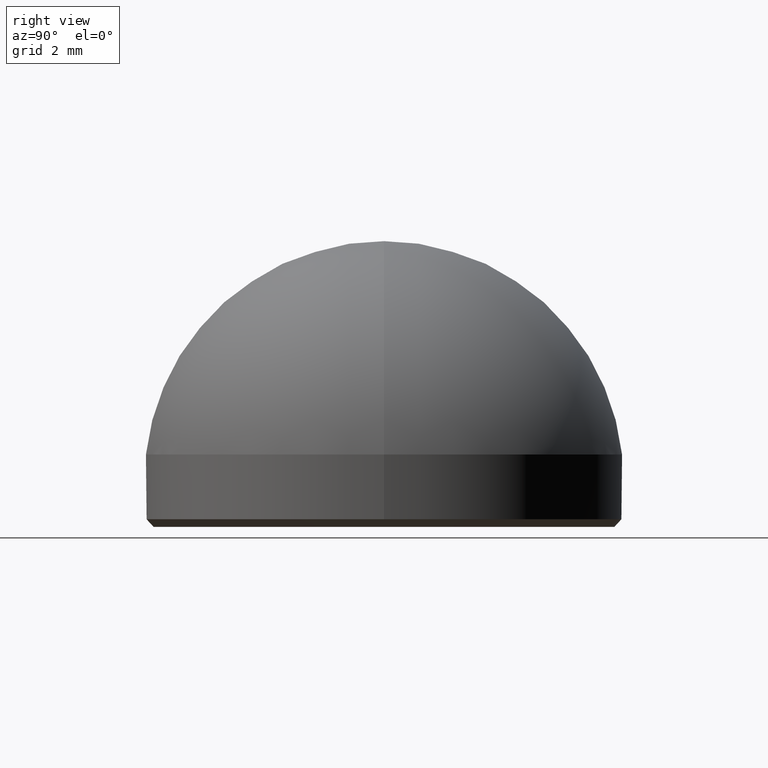
[diagram: clean part render]
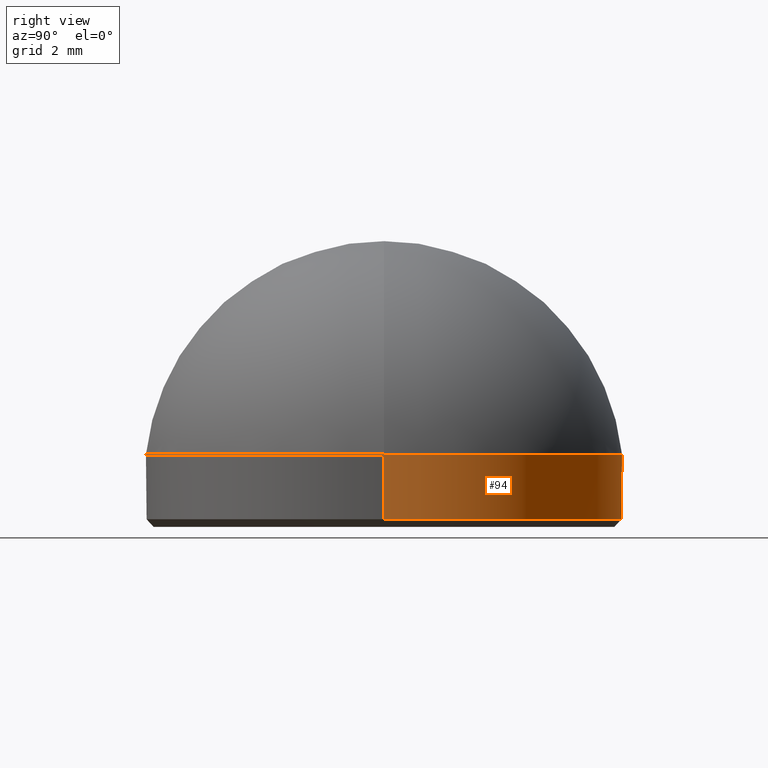
[diagram: same view with one face highlighted and labeled with its STEP entity id]
A machine part, right view. The second image highlights one B-rep face of the part: STEP entity #94.
In plain terms, the highlighted cylindrical surface (partial cylindrical patch) has radius 6.25 mm, axis along (-0, -0, -1).
Its self-contained STEP definition (entity closure, byte-faithful):
#1 = VERTEX_POINT ( 'NONE', #51 ) ;
#11 = DIRECTION ( 'NONE',  ( -0.000000000000000000, -0.000000000000000000, -1.000000000000000000 ) ) ;
#12 = VERTEX_POINT ( 'NONE', #181 ) ;
#13 = EDGE_CURVE ( 'NONE', #1, #200, #53, .T. ) ;
#20 = AXIS2_PLACEMENT_3D ( 'NONE', #123, #187, #43 ) ;
#23 = CARTESIAN_POINT ( 'NONE',  ( -6.250000000000000000, 0.000000000000000000, 0.2000000000000083378 ) ) ;
#31 = LINE ( 'NONE', #60, #85 ) ;
#36 = CARTESIAN_POINT ( 'NONE',  ( 0.000000000000000000, 0.000000000000000000, 0.2000000000000083378 ) ) ;
#41 = DIRECTION ( 'NONE',  ( 1.000000000000000000, 0.000000000000000000, 0.000000000000000000 ) ) ;
#43 = DIRECTION ( 'NONE',  ( 1.000000000000000000, 0.000000000000000000, 0.000000000000000000 ) ) ;
#50 = ORIENTED_EDGE ( 'NONE', *, *, #214, .T. ) ;
#51 = CARTESIAN_POINT ( 'NONE',  ( 6.250000000000000000, 7.654042494670955634E-16, 0.2000000000000083378 ) ) ;
#53 = CIRCLE ( 'NONE', #204, 6.250000000000000000 ) ;
#55 = LINE ( 'NONE', #164, #152 ) ;
#56 = EDGE_CURVE ( 'NONE', #64, #200, #31, .T. ) ;
#60 = CARTESIAN_POINT ( 'NONE',  ( -6.250000000000000000, 0.000000000000000000, 1.899999999999999911 ) ) ;
#61 = DIRECTION ( 'NONE',  ( -0.000000000000000000, -0.000000000000000000, -1.000000000000000000 ) ) ;
#64 = VERTEX_POINT ( 'NONE', #93 ) ;
#75 = DIRECTION ( 'NONE',  ( -1.000000000000000000, 0.000000000000000000, 0.000000000000000000 ) ) ;
#77 = FACE_OUTER_BOUND ( 'NONE', #130, .T. ) ;
#79 = ORIENTED_EDGE ( 'NONE', *, *, #168, .F. ) ;
#83 = DIRECTION ( 'NONE',  ( -0.000000000000000000, -0.000000000000000000, -1.000000000000000000 ) ) ;
#85 = VECTOR ( 'NONE', #11, 1000.000000000000000 ) ;
#92 = DIRECTION ( 'NONE',  ( -0.000000000000000000, -0.000000000000000000, 1.000000000000000000 ) ) ;
#93 = CARTESIAN_POINT ( 'NONE',  ( -6.250000000000000000, 0.000000000000000000, 1.899999999999999911 ) ) ;
#94 = ADVANCED_FACE ( 'NONE', ( #77 ), #169, .T. ) ;
#123 = CARTESIAN_POINT ( 'NONE',  ( 0.000000000000000000, 0.000000000000000000, 1.899999999999999911 ) ) ;
#124 = CIRCLE ( 'NONE', #20, 6.250000000000000000 ) ;
#130 = EDGE_LOOP ( 'NONE', ( #79, #50, #159, #148 ) ) ;
#148 = ORIENTED_EDGE ( 'NONE', *, *, #56, .F. ) ;
#152 = VECTOR ( 'NONE', #83, 1000.000000000000000 ) ;
#159 = ORIENTED_EDGE ( 'NONE', *, *, #13, .T. ) ;
#164 = CARTESIAN_POINT ( 'NONE',  ( 6.250000000000000000, 7.654042494670955634E-16, 1.899999999999999911 ) ) ;
#168 = EDGE_CURVE ( 'NONE', #12, #64, #124, .T. ) ;
#169 = CYLINDRICAL_SURFACE ( 'NONE', #194, 6.250000000000000000 ) ;
#181 = CARTESIAN_POINT ( 'NONE',  ( 6.250000000000000000, 7.654042494670955634E-16, 1.899999999999999911 ) ) ;
#187 = DIRECTION ( 'NONE',  ( 0.000000000000000000, 0.000000000000000000, 1.000000000000000000 ) ) ;
#190 = CARTESIAN_POINT ( 'NONE',  ( 0.000000000000000000, 0.000000000000000000, 1.899999999999999911 ) ) ;
#194 = AXIS2_PLACEMENT_3D ( 'NONE', #190, #61, #75 ) ;
#200 = VERTEX_POINT ( 'NONE', #23 ) ;
#204 = AXIS2_PLACEMENT_3D ( 'NONE', #36, #92, #41 ) ;
#214 = EDGE_CURVE ( 'NONE', #12, #1, #55, .T. ) ;